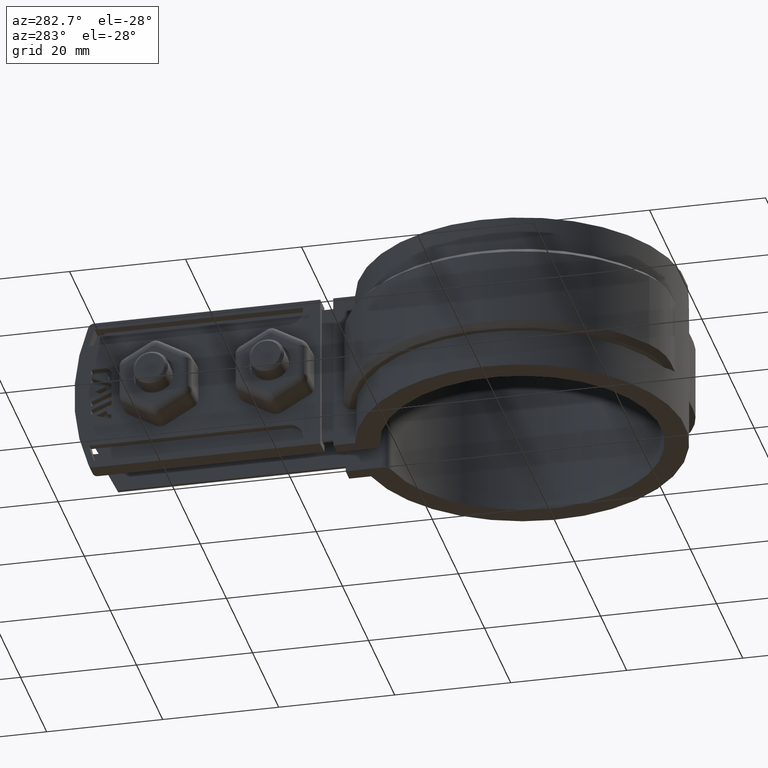
[diagram: clean part render]
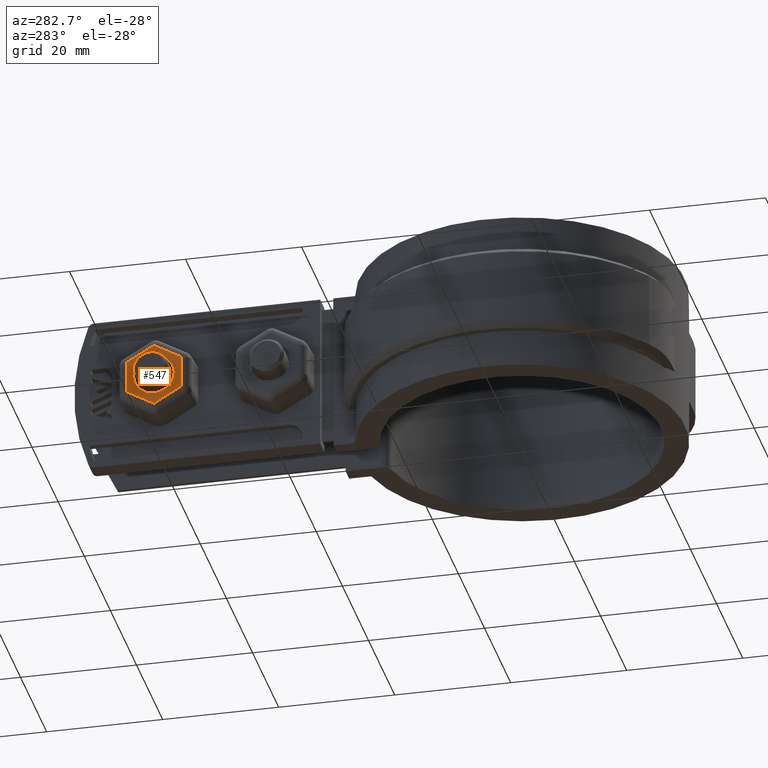
[diagram: same view with one face highlighted and labeled with its STEP entity id]
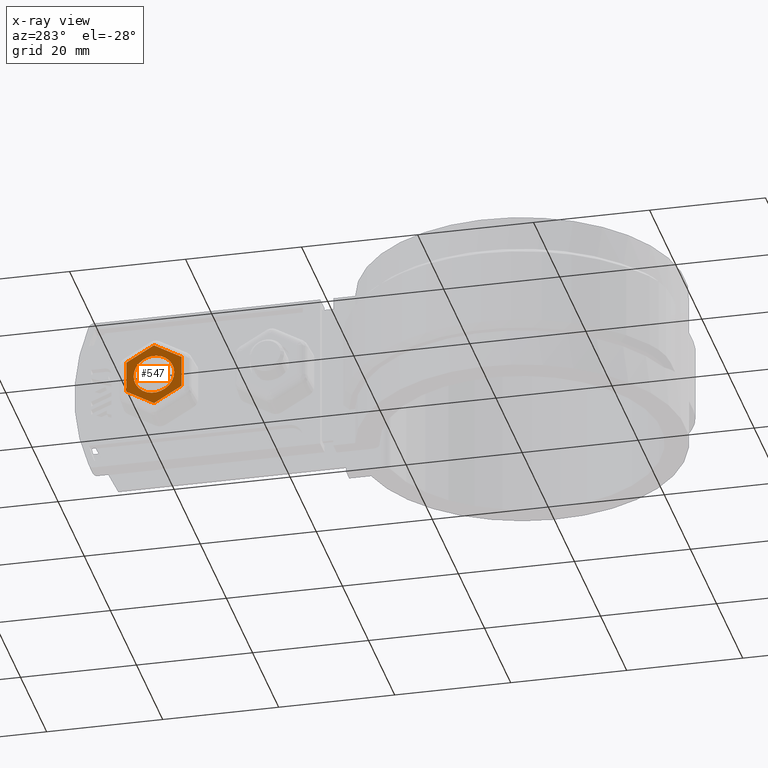
[diagram: x-ray of the same camera — body ghosted, the highlighted face saturated]
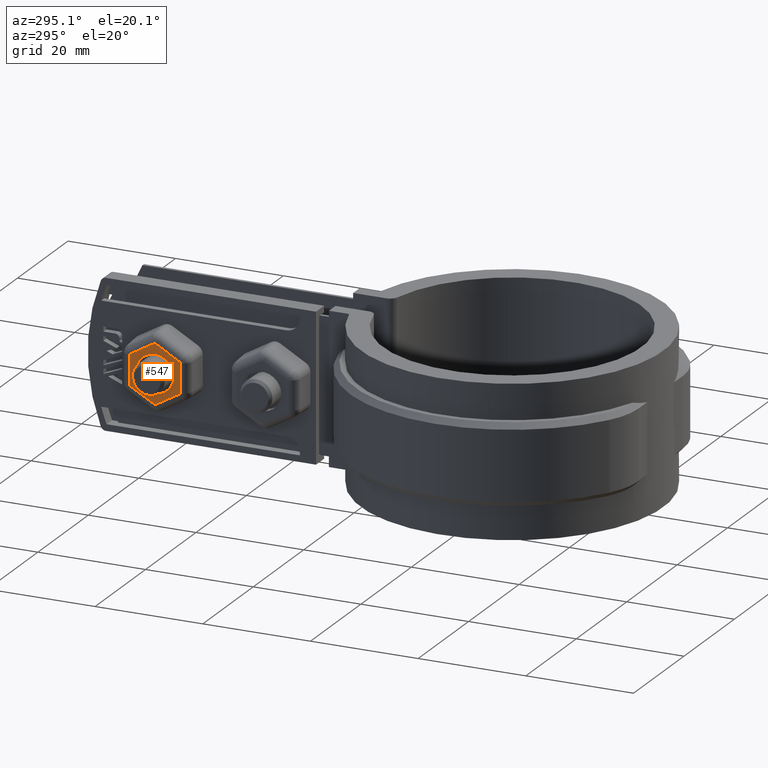
[diagram: same view with one face highlighted and labeled with its STEP entity id]
A machine part, auxiliary view. The second image highlights one B-rep face of the part: STEP entity #547.
The next image is the same camera in x-ray: the body ghosted, the highlighted face saturated — about 0% of this face is hidden behind the body in this view.
A second angle (auxiliary view) of the same face is appended — the face is thin or edge-on in the first view.
In plain terms, the highlighted planar face has unit normal (-1, 0, -0).
Its self-contained STEP definition (entity closure, byte-faithful):
#547 = ADVANCED_FACE( '', ( #1132, #1133 ), #1134, .T. );
#1132 = FACE_OUTER_BOUND( '', #2504, .T. );
#1133 = FACE_BOUND( '', #2505, .T. );
#1134 = PLANE( '', #2506 );
#2504 = EDGE_LOOP( '', ( #6116, #6117, #6118, #6119, #6120, #6121, #6122, #6123, #6124, #6125, #6126, #6127 ) );
#2505 = EDGE_LOOP( '', ( #6128 ) );
#2506 = AXIS2_PLACEMENT_3D( '', #6129, #6130, #6131 );
#6116 = ORIENTED_EDGE( '', *, *, #8062, .T. );
#6117 = ORIENTED_EDGE( '', *, *, #8063, .T. );
#6118 = ORIENTED_EDGE( '', *, *, #8064, .T. );
#6119 = ORIENTED_EDGE( '', *, *, #8065, .T. );
#6120 = ORIENTED_EDGE( '', *, *, #8066, .T. );
#6121 = ORIENTED_EDGE( '', *, *, #8067, .T. );
#6122 = ORIENTED_EDGE( '', *, *, #8068, .T. );
#6123 = ORIENTED_EDGE( '', *, *, #8069, .T. );
#6124 = ORIENTED_EDGE( '', *, *, #8070, .T. );
#6125 = ORIENTED_EDGE( '', *, *, #8071, .T. );
#6126 = ORIENTED_EDGE( '', *, *, #8072, .T. );
#6127 = ORIENTED_EDGE( '', *, *, #8073, .T. );
#6128 = ORIENTED_EDGE( '', *, *, #8074, .T. );
#6129 = CARTESIAN_POINT( '', ( -11.8999999999999, 65.4998007960197, -15.2135462651892 ) );
#6130 = DIRECTION( '', ( -1.00000000000000, 8.94472367836184E-017, -3.06315436100382E-016 ) );
#6131 = DIRECTION( '', ( -3.06315436100382E-016, 0.000000000000000, 1.00000000000000 ) );
#8062 = EDGE_CURVE( '', #9557, #9558, #9559, .T. );
#8063 = EDGE_CURVE( '', #9558, #9560, #9561, .T. );
#8064 = EDGE_CURVE( '', #9560, #9562, #9563, .T. );
#8065 = EDGE_CURVE( '', #9562, #9564, #9565, .T. );
#8066 = EDGE_CURVE( '', #9564, #9566, #9567, .T. );
#8067 = EDGE_CURVE( '', #9566, #9568, #9569, .T. );
#8068 = EDGE_CURVE( '', #9568, #9570, #9571, .T. );
#8069 = EDGE_CURVE( '', #9570, #9572, #9573, .T. );
#8070 = EDGE_CURVE( '', #9572, #9574, #9575, .T. );
#8071 = EDGE_CURVE( '', #9574, #9576, #9577, .T. );
#8072 = EDGE_CURVE( '', #9576, #9578, #9579, .T. );
#8073 = EDGE_CURVE( '', #9578, #9557, #9580, .T. );
#8074 = EDGE_CURVE( '', #9581, #9581, #9582, .T. );
#9557 = VERTEX_POINT( '', #13218 );
#9558 = VERTEX_POINT( '', #13219 );
#9559 = CIRCLE( '', #13220, 0.0765531499276566 );
#9560 = VERTEX_POINT( '', #13221 );
#9561 = LINE( '', #13222, #13223 );
#9562 = VERTEX_POINT( '', #13224 );
#9563 = CIRCLE( '', #13225, 0.0765531499276677 );
#9564 = VERTEX_POINT( '', #13226 );
#9565 = LINE( '', #13227, #13228 );
#9566 = VERTEX_POINT( '', #13229 );
#9567 = CIRCLE( '', #13230, 0.0765531499276644 );
#9568 = VERTEX_POINT( '', #13231 );
#9569 = LINE( '', #13232, #13233 );
#9570 = VERTEX_POINT( '', #13234 );
#9571 = CIRCLE( '', #13235, 0.0765531499276591 );
#9572 = VERTEX_POINT( '', #13236 );
#9573 = LINE( '', #13237, #13238 );
#9574 = VERTEX_POINT( '', #13239 );
#9575 = CIRCLE( '', #13240, 0.0765531499276576 );
#9576 = VERTEX_POINT( '', #13241 );
#9577 = LINE( '', #13242, #13243 );
#9578 = VERTEX_POINT( '', #13244 );
#9579 = CIRCLE( '', #13245, 0.0765531499276711 );
#9580 = LINE( '', #13246, #13247 );
#9581 = VERTEX_POINT( '', #13248 );
#9582 = CIRCLE( '', #13249, 3.49999999999920 );
#13218 = CARTESIAN_POINT( '', ( -11.8999999999999, 60.8380773709846, -17.9933895029570 ) );
#13219 = CARTESIAN_POINT( '', ( -11.8999999999999, 60.7615242210570, -17.9933895029570 ) );
#13220 = AXIS2_PLACEMENT_3D( '', #14664, #14665, #14666 );
#13221 = CARTESIAN_POINT( '', ( -11.8999999999999, 56.0615242210580, -15.2798432377663 ) );
#13222 = CARTESIAN_POINT( '', ( -11.8999999999999, 63.1115242210564, -19.3501626355523 ) );
#13223 = VECTOR( '', #14667, 1000.00000000000 );
#13224 = CARTESIAN_POINT( '', ( -11.8999999999999, 56.0232476460942, -15.2135462651892 ) );
#13225 = AXIS2_PLACEMENT_3D( '', #14668, #14669, #14670 );
#13226 = CARTESIAN_POINT( '', ( -11.8999999999999, 56.0232476460942, -9.78645373480797 ) );
#13227 = CARTESIAN_POINT( '', ( -11.8999999999999, 56.0232476460942, -15.2135462651892 ) );
#13228 = VECTOR( '', #14671, 1000.00000000000 );
#13229 = CARTESIAN_POINT( '', ( -11.8999999999999, 56.0615242210580, -9.72015676223089 ) );
#13230 = AXIS2_PLACEMENT_3D( '', #14672, #14673, #14674 );
#13231 = CARTESIAN_POINT( '', ( -11.8999999999999, 60.7615242210570, -7.00661049704025 ) );
#13232 = CARTESIAN_POINT( '', ( -11.8999999999999, 60.7615242210570, -7.00661049704025 ) );
#13233 = VECTOR( '', #14675, 1000.00000000000 );
#13234 = CARTESIAN_POINT( '', ( -11.8999999999999, 60.8380773709846, -7.00661049704026 ) );
#13235 = AXIS2_PLACEMENT_3D( '', #14676, #14677, #14678 );
#13236 = CARTESIAN_POINT( '', ( -11.8999999999999, 65.5380773709835, -9.72015676223089 ) );
#13237 = CARTESIAN_POINT( '', ( -11.8999999999999, 67.8880773709830, -11.0769298948262 ) );
#13238 = VECTOR( '', #14679, 1000.00000000000 );
#13239 = CARTESIAN_POINT( '', ( -11.8999999999999, 65.5763539459474, -9.78645373480796 ) );
#13240 = AXIS2_PLACEMENT_3D( '', #14680, #14681, #14682 );
#13241 = CARTESIAN_POINT( '', ( -11.8999999999999, 65.5763539459474, -15.2135462651892 ) );
#13242 = CARTESIAN_POINT( '', ( -11.8999999999999, 65.5763539459474, -15.2135462651892 ) );
#13243 = VECTOR( '', #14683, 1000.00000000000 );
#13244 = CARTESIAN_POINT( '', ( -11.8999999999999, 65.5380773709835, -15.2798432377663 ) );
#13245 = AXIS2_PLACEMENT_3D( '', #14684, #14685, #14686 );
#13246 = CARTESIAN_POINT( '', ( -11.8999999999999, 65.5380773709835, -15.2798432377663 ) );
#13247 = VECTOR( '', #14687, 1000.00000000000 );
#13248 = CARTESIAN_POINT( '', ( -11.8999999999999, 57.2998007960216, -12.4999999999986 ) );
#13249 = AXIS2_PLACEMENT_3D( '', #14688, #14689, #14690 );
#14664 = CARTESIAN_POINT( '', ( -11.8999999999999, 60.7998007960208, -17.9270925303799 ) );
#14665 = DIRECTION( '', ( -1.00000000000000, 8.94472367836184E-017, -3.06315436100382E-016 ) );
#14666 = DIRECTION( '', ( -8.94472367836184E-017, -1.00000000000000, 1.25333771087652E-016 ) );
#14667 = DIRECTION( '', ( -2.30621297402917E-016, -0.866025403784437, 0.500000000000002 ) );
#14668 = CARTESIAN_POINT( '', ( -11.8999999999999, 56.0998007960219, -15.2135462651892 ) );
#14669 = DIRECTION( '', ( -1.00000000000000, 8.94472367836184E-017, -3.06315436100382E-016 ) );
#14670 = DIRECTION( '', ( -8.94472367836184E-017, -1.00000000000000, 1.25333771087652E-016 ) );
#14671 = DIRECTION( '', ( -3.06315436100362E-016, 6.73864044624553E-017, 1.00000000000000 ) );
#14672 = CARTESIAN_POINT( '', ( -11.8999999999999, 56.0998007960219, -9.78645373480797 ) );
#14673 = DIRECTION( '', ( -1.00000000000000, 8.94472367836184E-017, -3.06315436100382E-016 ) );
#14674 = DIRECTION( '', ( -8.94472367836184E-017, -1.00000000000000, 1.25333771087652E-016 ) );
#14675 = DIRECTION( '', ( -7.56941386974469E-017, 0.866025403784437, 0.500000000000002 ) );
#14676 = CARTESIAN_POINT( '', ( -11.8999999999999, 60.7998007960208, -7.07290746961733 ) );
#14677 = DIRECTION( '', ( -1.00000000000000, 8.94472367836184E-017, -3.06315436100382E-016 ) );
#14678 = DIRECTION( '', ( -8.94472367836184E-017, -1.00000000000000, 1.25333771087652E-016 ) );
#14679 = DIRECTION( '', ( 2.30621297402917E-016, 0.866025403784437, -0.500000000000003 ) );
#14680 = CARTESIAN_POINT( '', ( -11.8999999999999, 65.4998007960197, -9.78645373480797 ) );
#14681 = DIRECTION( '', ( -1.00000000000000, 8.94472367836184E-017, -3.06315436100382E-016 ) );
#14682 = DIRECTION( '', ( -8.94472367836184E-017, -1.00000000000000, 1.25333771087652E-016 ) );
#14683 = DIRECTION( '', ( 3.06315436100362E-016, 4.27341525830982E-016, -1.00000000000000 ) );
#14684 = CARTESIAN_POINT( '', ( -11.8999999999999, 65.4998007960197, -15.2135462651892 ) );
#14685 = DIRECTION( '', ( -1.00000000000000, 8.94472367836184E-017, -3.06315436100382E-016 ) );
#14686 = DIRECTION( '', ( -8.94472367836184E-017, -1.00000000000000, 1.25333771087652E-016 ) );
#14687 = DIRECTION( '', ( 7.56941386974469E-017, -0.866025403784437, -0.500000000000002 ) );
#14688 = CARTESIAN_POINT( '', ( -11.8999999999999, 60.7998007960208, -12.4999999999986 ) );
#14689 = DIRECTION( '', ( 1.00000000000000, -8.94472367836184E-017, 3.06315436100382E-016 ) );
#14690 = DIRECTION( '', ( -8.94472367836184E-017, -1.00000000000000, 1.25333771087652E-016 ) );